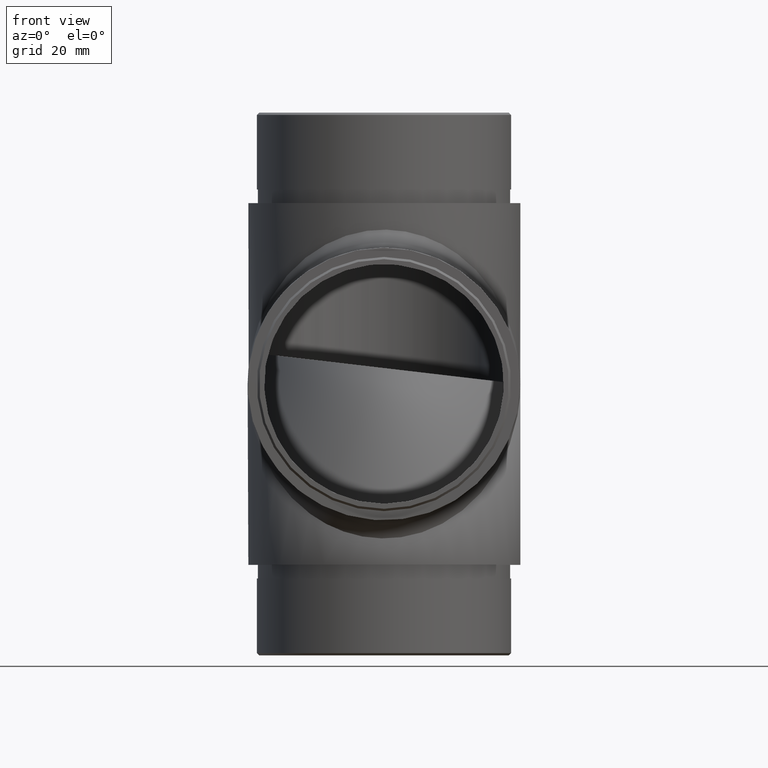
[diagram: clean part render]
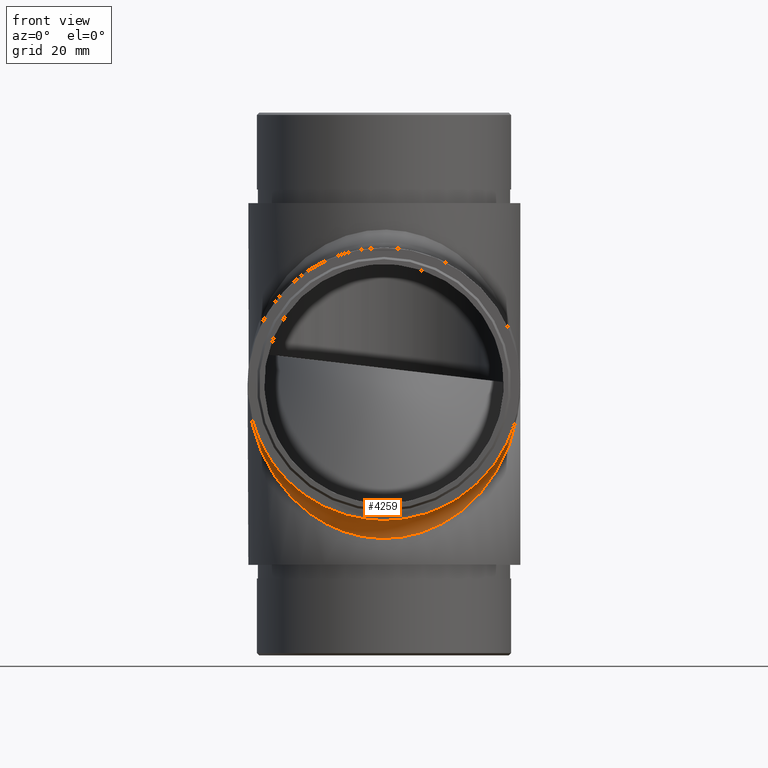
[diagram: same view with one face highlighted and labeled with its STEP entity id]
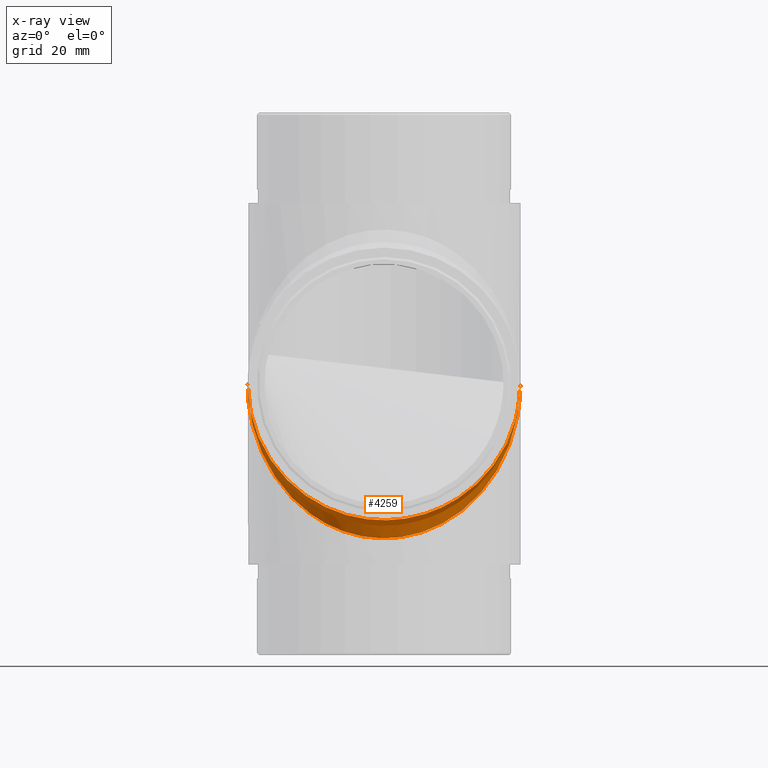
[diagram: x-ray of the same camera — body ghosted, the highlighted face saturated]
A machine part, front view. The second image highlights one B-rep face of the part: STEP entity #4259.
The next image is the same camera in x-ray: the body ghosted, the highlighted face saturated — about 1% of this face is hidden behind the body in this view.
In plain terms, the highlighted face is a freeform B-spline surface patch.
Its self-contained STEP definition (entity closure, byte-faithful):
#107 = CARTESIAN_POINT ( 'NONE',  ( 30.15000000000000200, 60.00000000000113700, 0.0000000000000000000 ) ) ;
#144 = CARTESIAN_POINT ( 'NONE',  ( 30.15000000000547300, 57.89578356412448600, -2.104216435846518500 ) ) ;
#186 = CARTESIAN_POINT ( 'NONE',  ( 30.14999999999999100, 60.00000000000056800, -5.032545425760726900E-013 ) ) ;
#250 = CARTESIAN_POINT ( 'NONE',  ( 30.14999999999999500, -8.300000000001418200, -60.29999999999999000 ) ) ;
#358 = CARTESIAN_POINT ( 'NONE',  ( -13.36100887176810700, 32.90018624285908500, -30.69514559888543600 ) ) ;
#402 = CARTESIAN_POINT ( 'NONE',  ( 19.92392653014039900, 34.27184037744827800, -22.71461237540838600 ) ) ;
#448 = CARTESIAN_POINT ( 'NONE',  ( 13.36100887176974300, 32.90018624285975300, -30.69514559887719300 ) ) ;
#489 = CARTESIAN_POINT ( 'NONE',  ( -9.714802099849603000, 27.59417352836565500, -28.61012205328734100 ) ) ;
#535 = CARTESIAN_POINT ( 'NONE',  ( -18.39119222524686800, 32.84707458625012300, -23.97249491140578600 ) ) ;
#702 = CARTESIAN_POINT ( 'NONE',  ( -21.84266032615909800, 39.08334298253871000, -20.91665701744843300 ) ) ;
#740 = CARTESIAN_POINT ( 'NONE',  ( -19.92392653014032800, 34.27184037743870000, -22.71461237540844600 ) ) ;
#1073 = CARTESIAN_POINT ( 'NONE',  ( 30.15000000000000200, 60.00000000000113700, 0.0000000000000000000 ) ) ;
#1109 = VERTEX_POINT ( 'NONE', #1073 ) ;
#1129 = CARTESIAN_POINT ( 'NONE',  ( 30.14999999999996300, 57.76486237211408100, -1.973335270279350700 ) ) ;
#1169 = CARTESIAN_POINT ( 'NONE',  ( 29.95565045040722700, 55.52983072072580500, -3.946576977163243100 ) ) ;
#1348 = CARTESIAN_POINT ( 'NONE',  ( 6.871901594366757000, 30.57761740538363800, -29.42238259462528700 ) ) ;
#1388 = CARTESIAN_POINT ( 'NONE',  ( 9.714802099844750000, 27.59417352835729200, -28.61012205328933800 ) ) ;
#1436 = CARTESIAN_POINT ( 'NONE',  ( 1.973312885262379100, 29.85000000000114900, -34.14999999999999100 ) ) ;
#1480 = CARTESIAN_POINT ( 'NONE',  ( 3.946576977290547500, 26.07013390114804000, -29.95565045038186700 ) ) ;
#1517 = CARTESIAN_POINT ( 'NONE',  ( 15.10969282583381600, 30.36355089347921400, -26.16512271043856300 ) ) ;
#1597 = CARTESIAN_POINT ( 'NONE',  ( -26.16512271046417100, 42.88570447759364900, -15.10969282579554700 ) ) ;
#1631 = CARTESIAN_POINT ( 'NONE',  ( -29.18570195790742300, 52.18263055959084100, -8.854499714427216600 ) ) ;
#1700 = CARTESIAN_POINT ( 'NONE',  ( -18.84485860837548900, 36.33248563122894100, -23.66751436878671200 ) ) ;
#1792 =( BOUNDED_CURVE ( )  B_SPLINE_CURVE ( 3, ( #4932, #7881, #250, #11769 ),
 .UNSPECIFIED., .F., .T. ) 
 B_SPLINE_CURVE_WITH_KNOTS ( ( 4, 4 ),
 ( 4.712388980384689700, 7.853981633974482800 ),
 .UNSPECIFIED. ) 
 CURVE ( )  GEOMETRIC_REPRESENTATION_ITEM ( )  RATIONAL_B_SPLINE_CURVE ( ( 1.000000000000000000, 0.3333333333333333700, 0.3333333333333333700, 1.000000000000000000 ) ) 
 REPRESENTATION_ITEM ( '' )  );
#2131 = CARTESIAN_POINT ( 'NONE',  ( -30.15000000000000200, 60.00000000000113700, 0.0000000000000000000 ) ) ;
#2311 = CARTESIAN_POINT ( 'NONE',  ( 9.714802099844712700, 31.38987794671175300, -32.40582647164384200 ) ) ;
#2359 = CARTESIAN_POINT ( 'NONE',  ( 7.817369440281812100, 26.94223144731356000, -29.18570195793294900 ) ) ;
#2399 = CARTESIAN_POINT ( 'NONE',  ( 19.92392653014273700, 37.28538762459502500, -25.72815962255760500 ) ) ;
#2440 = CARTESIAN_POINT ( 'NONE',  ( -15.10969282583383900, 33.83487728956254200, -29.63644910651743600 ) ) ;
#2486 = CARTESIAN_POINT ( 'NONE',  ( 29.18570195790736600, 51.14550028557383900, -7.817369440410228500 ) ) ;
#2524 = CARTESIAN_POINT ( 'NONE',  ( -30.14999999999999100, 60.00000000000061800, -4.570820040670137700E-013 ) ) ;
#2598 = CARTESIAN_POINT ( 'NONE',  ( -29.18570195790784900, 51.14550028557392400, -7.817369440407813600 ) ) ;
#2643 = CARTESIAN_POINT ( 'NONE',  ( -25.65097709207882200, 43.99439259165296800, -16.00560740835307200 ) ) ;
#2684 = CARTESIAN_POINT ( 'NONE',  ( -27.09981375710730200, 44.86638630269288100, -13.36100887185201100 ) ) ;
#3199 = CARTESIAN_POINT ( 'NONE',  ( 29.92684951477044900, 55.77858597298089900, -4.221414027062005300 ) ) ;
#3298 = CARTESIAN_POINT ( 'NONE',  ( 28.61012205332548000, 48.99633526677298100, -9.714802099757607200 ) ) ;
#3343 = CARTESIAN_POINT ( 'NONE',  ( 28.61012205332444200, 50.28519790024119400, -11.00366473322551100 ) ) ;
#3389 = CARTESIAN_POINT ( 'NONE',  ( -7.817369440283561000, 30.81429804206855400, -33.05776855268755600 ) ) ;
#3429 = EDGE_CURVE ( 'NONE', #7260, #1109, #1792, .T. ) ;
#3434 = CARTESIAN_POINT ( 'NONE',  ( -18.39119222524779900, 36.02750508859603000, -27.15292541374658000 ) ) ;
#3470 = CARTESIAN_POINT ( 'NONE',  ( 23.97249491138046900, 41.60880777471634700, -20.83115139282688900 ) ) ;
#3590 = CARTESIAN_POINT ( 'NONE',  ( -30.15000000000547300, 57.89578356413198900, -2.104216435849988600 ) ) ;
#3623 = CARTESIAN_POINT ( 'NONE',  ( -30.14999999999996300, 57.76486237213413900, -1.973335270300375900 ) ) ;
#3896 = CARTESIAN_POINT ( 'NONE',  ( -30.15000000000000600, -0.2999999999988775500, -68.29999999999996900 ) ) ;
#4222 = CARTESIAN_POINT ( 'NONE',  ( 8.611350963500475700, 31.02200225018400200, -28.97799774981710600 ) ) ;
#4259 = ADVANCED_FACE ( 'NONE', ( #6329 ), #4669, .F. ) ;
#4263 = CARTESIAN_POINT ( 'NONE',  ( 26.16512271046723700, 42.88570447758346700, -15.10969282579096900 ) ) ;
#4313 = CARTESIAN_POINT ( 'NONE',  ( -3.946576977288888800, 30.04434954961892500, -33.92986609885307600 ) ) ;
#4354 = CARTESIAN_POINT ( 'NONE',  ( 7.817369440282538700, 30.81429804206834100, -33.05776855268757700 ) ) ;
#4395 = CARTESIAN_POINT ( 'NONE',  ( -17.22113455795861000, 35.13706449532559600, -24.86293550467985400 ) ) ;
#4477 = CARTESIAN_POINT ( 'NONE',  ( -28.61012205332372500, 50.28519790023948800, -11.00366473322796600 ) ) ;
#4510 = EDGE_LOOP ( 'NONE', ( #8118, #12015 ) ) ;
#4511 = CARTESIAN_POINT ( 'NONE',  ( -30.15000000000002700, 58.02666472970177800, -2.235137627869638900 ) ) ;
#4547 = CARTESIAN_POINT ( 'NONE',  ( -26.16512271047027800, 44.89030717421483300, -17.11429552241253300 ) ) ;
#4669 =( BOUNDED_SURFACE ( )  B_SPLINE_SURFACE ( 3, 2, ( 
 ( #7991, #5950, #186 ),
 ( #8035, #144, #1129 ),
 ( #7050, #3199, #1169 ),
 ( #8171, #8127, #2486 ),
 ( #3343, #9082, #3298 ),
 ( #10062, #5240, #6260 ),
 ( #12056, #9246, #4263 ),
 ( #3470, #10182, #8296 ),
 ( #11053, #11010, #12008 ),
 ( #2399, #6217, #402 ),
 ( #7194, #11147, #10143 ),
 ( #5327, #6342, #1517 ),
 ( #448, #7238, #8255 ),
 ( #2311, #4222, #1388 ),
 ( #4354, #1348, #2359 ),
 ( #5191, #8209, #1480 ),
 ( #1436, #5367, #9124 ),
 ( #10104, #11962, #6176 ),
 ( #4313, #5283, #9168 ),
 ( #3389, #11100, #12096 ),
 ( #12142, #6305, #489 ),
 ( #358, #7282, #10968 ),
 ( #2440, #9212, #7143 ),
 ( #3434, #4395, #535 ),
 ( #7321, #1700, #740 ),
 ( #5528, #702, #11185 ),
 ( #8491, #9327, #12227 ),
 ( #4547, #2643, #1597 ),
 ( #10336, #8413, #2684 ),
 ( #4477, #6418, #8334 ),
 ( #1631, #12336, #2598 ),
 ( #11305, #10263, #11266 ),
 ( #4511, #3590, #3623 ),
 ( #6492, #6456, #2524 ) ),
 .UNSPECIFIED., .F., .F., .T. ) 
 B_SPLINE_SURFACE_WITH_KNOTS ( ( 4, 2, 2, 2, 2, 2, 2, 2, 2, 2, 2, 2, 2, 2, 2, 2, 4 ),
 ( 3, 3 ),
 ( 4.712388980384706500, 4.908738521234067100, 5.105088062083426700, 5.301437602932786300, 5.497787143782145900, 5.694136684631505600, 5.890486225480866100, 6.086835766330226600, 6.283185307179586200, 6.479534848028945900, 6.675884388878306400, 6.872233929727666900, 7.068583470577026500, 7.264933011426386100, 7.461282552275745800, 7.657632093125105400, 7.853981633974465900 ),
 ( 0.0000000000000000000, 1.000000000000000000 ),
 .UNSPECIFIED. ) 
 GEOMETRIC_REPRESENTATION_ITEM ( )  RATIONAL_B_SPLINE_SURFACE ( (
 ( 1.000000000000000000, 1.000000000000000000, 1.000000000000000000),
 ( 1.000000000000000000, 1.000009746407727600, 1.000000000000000000),
 ( 1.000000000000000000, 0.9967613244647053300, 1.000000000000000000),
 ( 1.000000000000000000, 0.9841171504830352700, 1.000000000000000000),
 ( 1.000000000000000000, 0.9747108043725092300, 1.000000000000000000),
 ( 1.000000000000000000, 0.9506740353898035500, 1.000000000000000000),
 ( 1.000000000000000000, 0.9360421842860379100, 1.000000000000000000),
 ( 1.000000000000000000, 0.9031650994003585000, 1.000000000000000000),
 ( 1.000000000000000000, 0.8849191471550791300, 1.000000000000000000),
 ( 1.000000000000000000, 0.8471316604138011700, 1.000000000000000000),
 ( 1.000000000000000000, 0.8275942696258903300, 1.000000000000000000),
 ( 1.000000000000000000, 0.7902180086174521700, 1.000000000000000000),
 ( 1.000000000000000000, 0.7723968218519045000, 1.000000000000000000),
 ( 1.000000000000000000, 0.7418334178452997700, 1.000000000000000000),
 ( 1.000000000000000000, 0.7291288940442093300, 1.000000000000000000),
 ( 1.000000000000000000, 0.7117460024991071300, 1.000000000000000000),
 ( 1.000000000000000000, 0.7071067811865477900, 1.000000000000000000),
 ( 1.000000000000000000, 0.7071067811865477900, 1.000000000000000000),
 ( 1.000000000000000000, 0.7117460024997398500, 1.000000000000000000),
 ( 1.000000000000000000, 0.7291288940435779500, 1.000000000000000000),
 ( 1.000000000000000000, 0.7418334178458325700, 1.000000000000000000),
 ( 1.000000000000000000, 0.7723968218513743700, 1.000000000000000000),
 ( 1.000000000000000000, 0.7902180086181624900, 1.000000000000000000),
 ( 1.000000000000000000, 0.8275942696251813400, 1.000000000000000000),
 ( 1.000000000000000000, 0.8471316604133442000, 1.000000000000000000),
 ( 1.000000000000000000, 0.8849191471555338800, 1.000000000000000000),
 ( 1.000000000000000000, 0.9031650994003591600, 1.000000000000000000),
 ( 1.000000000000000000, 0.9360421842860385800, 1.000000000000000000),
 ( 1.000000000000000000, 0.9506740353899736400, 1.000000000000000000),
 ( 1.000000000000000000, 0.9747108043723413700, 1.000000000000000000),
 ( 1.000000000000000000, 0.9841171504830355000, 1.000000000000000000),
 ( 1.000000000000000000, 0.9967613244647055600, 1.000000000000000000),
 ( 1.000000000000000000, 1.000009746407727600, 1.000000000000000000),
 ( 1.000000000000000000, 1.000000000000000000, 1.000000000000000000) ) ) 
 REPRESENTATION_ITEM ( '' )  SURFACE ( )  );
#4932 = CARTESIAN_POINT ( 'NONE',  ( -30.15000000000000200, 60.00000000000113700, 0.0000000000000000000 ) ) ;
#5191 = CARTESIAN_POINT ( 'NONE',  ( 3.946576977289767600, 30.04434954961909900, -33.92986609885309700 ) ) ;
#5240 = CARTESIAN_POINT ( 'NONE',  ( 26.70548562074142800, 45.81913894219521700, -14.18086105781121700 ) ) ;
#5283 = CARTESIAN_POINT ( 'NONE',  ( -3.403931278288461200, 29.98621332627041300, -30.01378667373872100 ) ) ;
#5327 = CARTESIAN_POINT ( 'NONE',  ( 15.10969282583377700, 33.83487728956249200, -29.63644910651748500 ) ) ;
#5367 = CARTESIAN_POINT ( 'NONE',  ( 1.711513497948512000, 29.85000000000114200, -30.14999999999999900 ) ) ;
#5528 = CARTESIAN_POINT ( 'NONE',  ( -22.71461237540795600, 40.07607346986031900, -22.56723353247922900 ) ) ;
#5950 = CARTESIAN_POINT ( 'NONE',  ( 30.14999999999999100, 60.00000000000053300, -5.366379284849332600E-013 ) ) ;
#6176 = CARTESIAN_POINT ( 'NONE',  ( -1.973312885262227700, 25.85000000000114200, -30.14999999999999900 ) ) ;
#6217 = CARTESIAN_POINT ( 'NONE',  ( 18.84485860837152400, 36.33248563122976500, -23.66751436877618900 ) ) ;
#6260 = CARTESIAN_POINT ( 'NONE',  ( 27.09981375710474400, 44.86638630269269600, -13.36100887185815500 ) ) ;
#6305 = CARTESIAN_POINT ( 'NONE',  ( -8.611350963504008900, 31.02200225017605100, -28.97799774981659500 ) ) ;
#6329 = FACE_OUTER_BOUND ( 'NONE', #4510, .T. ) ;
#6342 = CARTESIAN_POINT ( 'NONE',  ( 13.85397331461395100, 33.10960359085338900, -26.89039640915223500 ) ) ;
#6418 = CARTESIAN_POINT ( 'NONE',  ( -28.39934854014275000, 49.64746410760765400, -10.35253589235954800 ) ) ;
#6456 = CARTESIAN_POINT ( 'NONE',  ( -30.14999999999999100, 60.00000000000058300, -4.874025350167327900E-013 ) ) ;
#6492 = CARTESIAN_POINT ( 'NONE',  ( -30.14999999999999100, 60.00000000000054700, -5.177230659664517100E-013 ) ) ;
#7050 = CARTESIAN_POINT ( 'NONE',  ( 29.95565045040693500, 56.05342302283673900, -4.470169279273966000 ) ) ;
#7143 = CARTESIAN_POINT ( 'NONE',  ( -15.10969282583489800, 30.36355089348814200, -26.16512271043784900 ) ) ;
#7194 = CARTESIAN_POINT ( 'NONE',  ( 18.39119222524774600, 36.02750508859596600, -27.15292541374663000 ) ) ;
#7238 = CARTESIAN_POINT ( 'NONE',  ( 12.11442718070982300, 32.29817562922753600, -27.70182437077358300 ) ) ;
#7260 = VERTEX_POINT ( 'NONE', #2131 ) ;
#7282 = CARTESIAN_POINT ( 'NONE',  ( -12.11442718070910600, 32.29817562923615500, -27.70182437077310700 ) ) ;
#7321 = CARTESIAN_POINT ( 'NONE',  ( -19.92392653014029600, 37.28538762459258700, -25.72815962256243000 ) ) ;
#7881 = CARTESIAN_POINT ( 'NONE',  ( -30.15000000000000600, -8.300000000001411100, -60.29999999999999000 ) ) ;
#7991 = CARTESIAN_POINT ( 'NONE',  ( 30.14999999999999100, 60.00000000000049700, -5.700213143937938400E-013 ) ) ;
#8035 = CARTESIAN_POINT ( 'NONE',  ( 30.15000000000002300, 58.02666472969551100, -2.235137627864319100 ) ) ;
#8118 = ORIENTED_EDGE ( 'NONE', *, *, #10275, .F. ) ;
#8127 = CARTESIAN_POINT ( 'NONE',  ( 29.05673657740942100, 51.66599362687051000, -8.334006373088188400 ) ) ;
#8171 = CARTESIAN_POINT ( 'NONE',  ( 29.18570195790761100, 52.18263055959180700, -8.854499714428655500 ) ) ;
#8209 = CARTESIAN_POINT ( 'NONE',  ( 3.403931278285838000, 29.98621332626612100, -30.01378667372700100 ) ) ;
#8255 = CARTESIAN_POINT ( 'NONE',  ( 13.36100887176979800, 29.30485440112394000, -27.09981375714138700 ) ) ;
#8296 = CARTESIAN_POINT ( 'NONE',  ( 23.97249491137582200, 39.16884860717928500, -18.39119222529164000 ) ) ;
#8334 = CARTESIAN_POINT ( 'NONE',  ( -28.61012205332305700, 48.99633526677317300, -9.714802099763421200 ) ) ;
#8413 = CARTESIAN_POINT ( 'NONE',  ( -26.70548562074700500, 45.81913894221711600, -14.18086105781871900 ) ) ;
#8491 = CARTESIAN_POINT ( 'NONE',  ( -23.97249491137276700, 41.60880777470480800, -20.83115139282679700 ) ) ;
#9082 = CARTESIAN_POINT ( 'NONE',  ( 28.39934854014773400, 49.64746410762798900, -10.35253589236786800 ) ) ;
#9124 = CARTESIAN_POINT ( 'NONE',  ( 1.973312885262388200, 25.85000000000114200, -30.14999999999998400 ) ) ;
#9168 = CARTESIAN_POINT ( 'NONE',  ( -3.946576977288911400, 26.07013390114806100, -29.95565045038219400 ) ) ;
#9212 = CARTESIAN_POINT ( 'NONE',  ( -13.85397331462237400, 33.10960359084530300, -26.89039640915126800 ) ) ;
#9246 = CARTESIAN_POINT ( 'NONE',  ( 25.65097709208867700, 43.99439259163307300, -16.00560740834819700 ) ) ;
#9327 = CARTESIAN_POINT ( 'NONE',  ( -23.22945405939190900, 40.62781256635106100, -19.37218743364488900 ) ) ;
#10062 = CARTESIAN_POINT ( 'NONE',  ( 27.09981375710568600, 46.63899112814509400, -15.13361369731108000 ) ) ;
#10104 = CARTESIAN_POINT ( 'NONE',  ( -1.973312885262218600, 29.85000000000113500, -34.14999999999999100 ) ) ;
#10143 = CARTESIAN_POINT ( 'NONE',  ( 18.39119222524782400, 32.84707458625894100, -23.97249491140515000 ) ) ;
#10182 = CARTESIAN_POINT ( 'NONE',  ( 23.22945405938158100, 40.62781256637151000, -19.37218743365009700 ) ) ;
#10242 =( BOUNDED_CURVE ( )  B_SPLINE_CURVE ( 3, ( #107, #10563, #3896, #10648 ),
 .UNSPECIFIED., .F., .T. ) 
 B_SPLINE_CURVE_WITH_KNOTS ( ( 4, 4 ),
 ( 4.712388980384689700, 7.853981633974482800 ),
 .UNSPECIFIED. ) 
 CURVE ( )  GEOMETRIC_REPRESENTATION_ITEM ( )  RATIONAL_B_SPLINE_CURVE ( ( 1.000000000000000000, 0.3333333333333333700, 0.3333333333333333700, 1.000000000000000000 ) ) 
 REPRESENTATION_ITEM ( '' )  );
#10263 = CARTESIAN_POINT ( 'NONE',  ( -29.92684951475427700, 55.77858597294859100, -4.221414027034939000 ) ) ;
#10275 = EDGE_CURVE ( 'NONE', #1109, #7260, #10242, .T. ) ;
#10336 = CARTESIAN_POINT ( 'NONE',  ( -27.09981375710653500, 46.63899112814713300, -15.13361369730825600 ) ) ;
#10563 = CARTESIAN_POINT ( 'NONE',  ( 30.15000000000001600, -0.2999999999988705600, -68.29999999999996900 ) ) ;
#10648 = CARTESIAN_POINT ( 'NONE',  ( -30.15000000000000200, 60.00000000000113700, 0.0000000000000000000 ) ) ;
#10968 = CARTESIAN_POINT ( 'NONE',  ( -13.36100887176522700, 29.30485440111570100, -27.09981375714327400 ) ) ;
#11010 = CARTESIAN_POINT ( 'NONE',  ( 21.84266032616456200, 39.08334298253947000, -20.91665701745697000 ) ) ;
#11053 = CARTESIAN_POINT ( 'NONE',  ( 22.71461237540564000, 40.07607346985802400, -22.56723353248390800 ) ) ;
#11100 = CARTESIAN_POINT ( 'NONE',  ( -6.871901594367330700, 30.57761740538000300, -29.42238259461332500 ) ) ;
#11147 = CARTESIAN_POINT ( 'NONE',  ( 17.22113455796364100, 35.13706449531602500, -24.86293550468073800 ) ) ;
#11185 = CARTESIAN_POINT ( 'NONE',  ( -22.71461237540805600, 37.43276646752190100, -19.92392653014077600 ) ) ;
#11266 = CARTESIAN_POINT ( 'NONE',  ( -29.95565045040676800, 55.52983072072589700, -3.946576977165515500 ) ) ;
#11305 = CARTESIAN_POINT ( 'NONE',  ( -29.95565045040714500, 56.05342302283785500, -4.470169279275245000 ) ) ;
#11769 = CARTESIAN_POINT ( 'NONE',  ( 30.15000000000000200, 60.00000000000113700, 0.0000000000000000000 ) ) ;
#11962 = CARTESIAN_POINT ( 'NONE',  ( -1.711513497948372800, 29.85000000000114200, -30.14999999999999900 ) ) ;
#12008 = CARTESIAN_POINT ( 'NONE',  ( 22.71461237540811600, 37.43276646751247900, -19.92392653014071200 ) ) ;
#12015 = ORIENTED_EDGE ( 'NONE', *, *, #3429, .F. ) ;
#12056 = CARTESIAN_POINT ( 'NONE',  ( 26.16512271046247300, 44.89030717420313000, -17.11429552241262200 ) ) ;
#12096 = CARTESIAN_POINT ( 'NONE',  ( -7.817369440283588500, 26.94223144731358100, -29.18570195793259000 ) ) ;
#12142 = CARTESIAN_POINT ( 'NONE',  ( -9.714802099846629300, 31.38987794671253100, -32.40582647163547800 ) ) ;
#12227 = CARTESIAN_POINT ( 'NONE',  ( -23.97249491137899800, 39.16884860716930200, -18.39119222528690800 ) ) ;
#12336 = CARTESIAN_POINT ( 'NONE',  ( -29.05673657742582300, 51.66599362690339300, -8.334006373115439500 ) ) ;